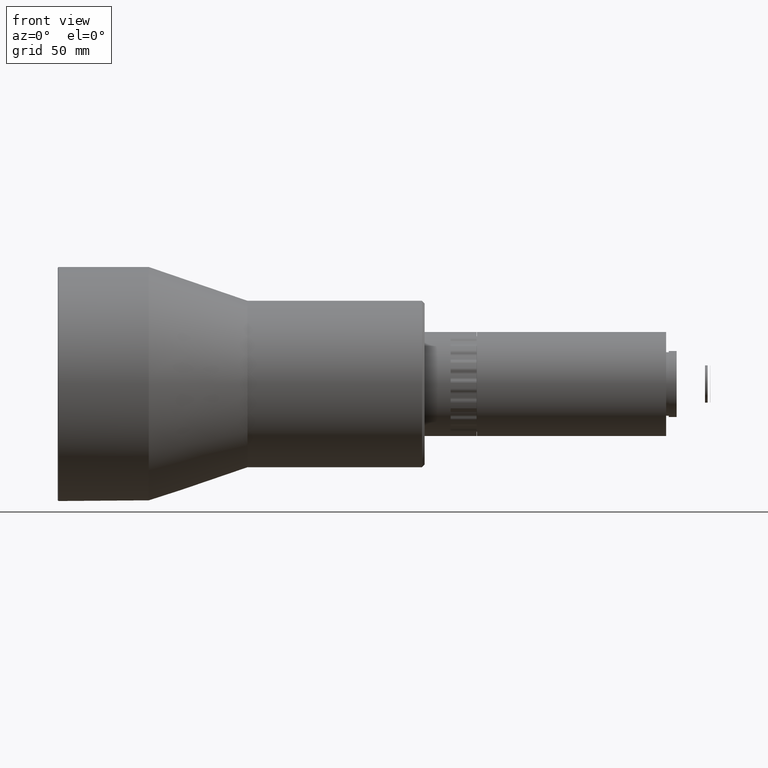
[diagram: clean part render]
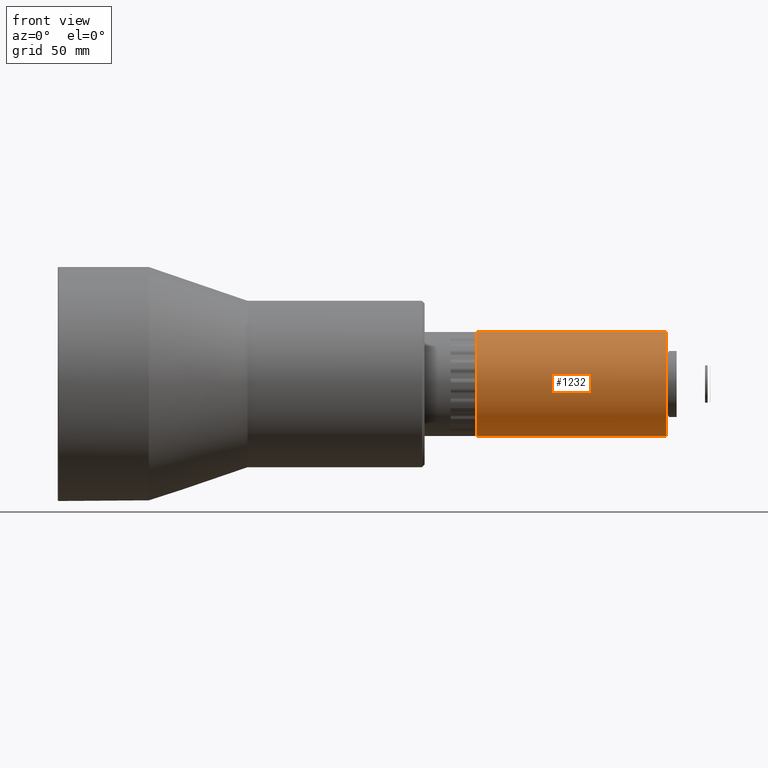
[diagram: same view with one face highlighted and labeled with its STEP entity id]
A machine part, front view. The second image highlights one B-rep face of the part: STEP entity #1232.
In plain terms, the highlighted cylindrical surface (bore or boss wall) has radius 20 mm, axis along (-1, -0, 0).
Its self-contained STEP definition (entity closure, byte-faithful):
#122 = EDGE_LOOP ( 'NONE', ( #5633 ) ) ;
#236 = AXIS2_PLACEMENT_3D ( 'NONE', #7508, #806, #1473 ) ;
#409 = DIRECTION ( 'NONE',  ( 1.000000000000000000, 0.000000000000000000, -0.000000000000000000 ) ) ;
#763 = ORIENTED_EDGE ( 'NONE', *, *, #4240, .T. ) ;
#806 = DIRECTION ( 'NONE',  ( -1.000000000000000000, -0.000000000000000000, 0.000000000000000000 ) ) ;
#1197 = CARTESIAN_POINT ( 'NONE',  ( 156.3182105647626372, 15.06239177677420393, 180.0790519195336401 ) ) ;
#1232 = ADVANCED_FACE ( 'NONE', ( #3811, #7485 ), #2738, .T. ) ;
#1473 = DIRECTION ( 'NONE',  ( 0.000000000000000000, 0.02438687346674463241, 0.9997025959766819847 ) ) ;
#1519 = DIRECTION ( 'NONE',  ( -1.000000000000000000, -0.000000000000000000, 0.000000000000000000 ) ) ;
#1553 = VERTEX_POINT ( 'NONE', #3409 ) ;
#1620 = AXIS2_PLACEMENT_3D ( 'NONE', #3231, #1519, #7411 ) ;
#1626 = EDGE_CURVE ( 'NONE', #1553, #1553, #4169, .T. ) ;
#1794 = EDGE_LOOP ( 'NONE', ( #763 ) ) ;
#2738 = CYLINDRICAL_SURFACE ( 'NONE', #1620, 19.99999999999998934 ) ;
#3231 = CARTESIAN_POINT ( 'NONE',  ( 43.84079664588671932, 14.57465430743931201, 160.0850000000000080 ) ) ;
#3408 = CARTESIAN_POINT ( 'NONE',  ( 83.51821056476264005, 14.57465430743931201, 160.0850000000000080 ) ) ;
#3409 = CARTESIAN_POINT ( 'NONE',  ( 83.51821056476264005, 15.06239177677420393, 180.0790519195336401 ) ) ;
#3686 = VERTEX_POINT ( 'NONE', #1197 ) ;
#3811 = FACE_OUTER_BOUND ( 'NONE', #122, .T. ) ;
#4169 = CIRCLE ( 'NONE', #5173, 19.99999999999998934 ) ;
#4240 = EDGE_CURVE ( 'NONE', #3686, #3686, #7544, .T. ) ;
#5173 = AXIS2_PLACEMENT_3D ( 'NONE', #3408, #409, #5803 ) ;
#5633 = ORIENTED_EDGE ( 'NONE', *, *, #1626, .T. ) ;
#5803 = DIRECTION ( 'NONE',  ( 0.000000000000000000, 0.02438687346674463241, 0.9997025959766819847 ) ) ;
#7411 = DIRECTION ( 'NONE',  ( 0.000000000000000000, 0.02438687346674463241, 0.9997025959766819847 ) ) ;
#7485 = FACE_OUTER_BOUND ( 'NONE', #1794, .T. ) ;
#7508 = CARTESIAN_POINT ( 'NONE',  ( 156.3182105647626372, 14.57465430743931201, 160.0850000000000080 ) ) ;
#7544 = CIRCLE ( 'NONE', #236, 19.99999999999998934 ) ;